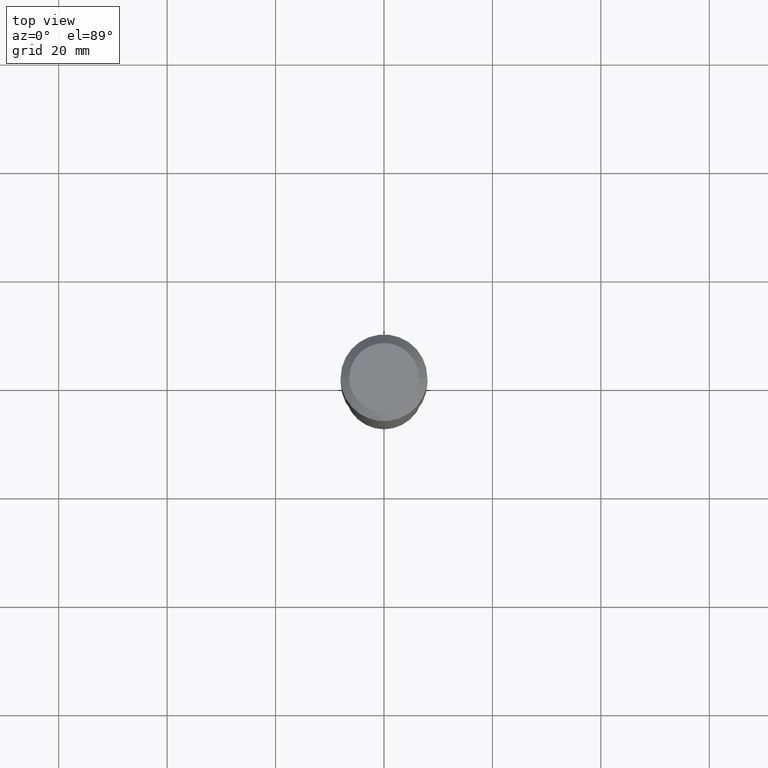
[diagram: clean part render]
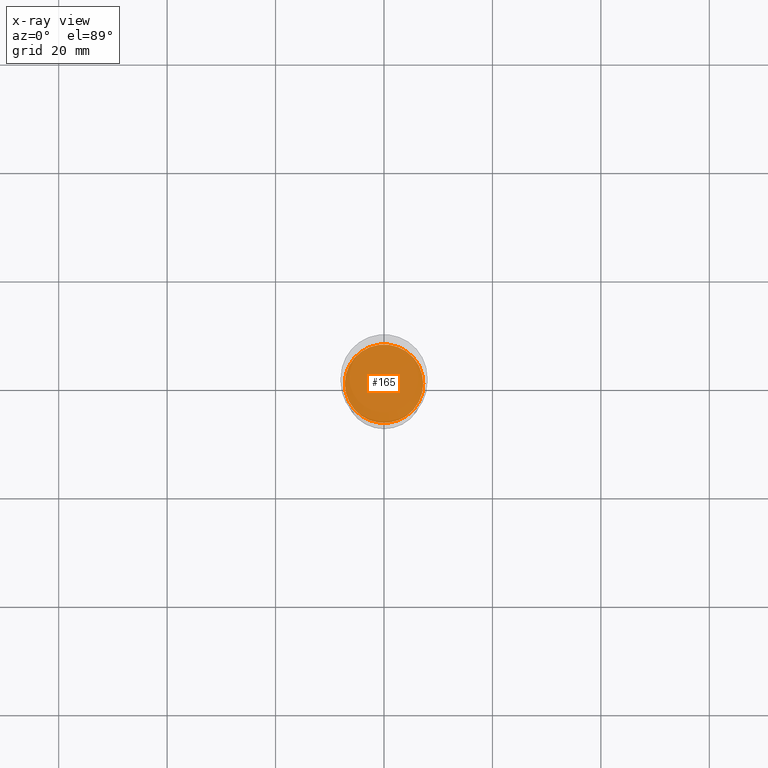
[diagram: x-ray — body ghosted, one internal face saturated and labeled with its STEP entity id]
A machine part, top view, then the same camera in x-ray: the body is ghosted and one INTERNAL B-rep face — a face not visible from any outside direction — is saturated and labeled: STEP entity #165.
In plain terms, the highlighted planar face has unit normal (-0, 0, 1).
Its self-contained STEP definition (entity closure, byte-faithful):
#15 = DIRECTION ( 'NONE',  ( -2.438088387897960049E-29, 3.491481338843145188E-15, 1.000000000000000000 ) ) ;
#22 = AXIS2_PLACEMENT_3D ( 'NONE', #54, #15, #426 ) ;
#54 = CARTESIAN_POINT ( 'NONE',  ( 6.210023486426536087E-29, -8.866267711858284157E-15, -2.539400000000000102 ) ) ;
#100 = EDGE_LOOP ( 'NONE', ( #475, #345 ) ) ;
#117 = DIRECTION ( 'NONE',  ( 1.000000000000000000, -6.982962677686263555E-15, 0.000000000000000000 ) ) ;
#118 = CIRCLE ( 'NONE', #225, 0.2849499999999999811 ) ;
#132 = PLANE ( 'NONE',  #22 ) ;
#136 = DIRECTION ( 'NONE',  ( -2.445468806185136597E-29, 3.491481338843145583E-15, 1.000000000000000000 ) ) ;
#137 = VERTEX_POINT ( 'NONE', #391 ) ;
#149 = CARTESIAN_POINT ( 'NONE',  ( 6.210023486426536087E-29, -8.866267711858284157E-15, -2.539400000000000102 ) ) ;
#165 = ADVANCED_FACE ( 'NONE', ( #213 ), #132, .F. ) ;
#175 = CIRCLE ( 'NONE', #265, 0.2849499999999999811 ) ;
#187 = VERTEX_POINT ( 'NONE', #356 ) ;
#213 = FACE_OUTER_BOUND ( 'NONE', #100, .T. ) ;
#225 = AXIS2_PLACEMENT_3D ( 'NONE', #149, #236, #117 ) ;
#236 = DIRECTION ( 'NONE',  ( -2.445468806185136597E-29, 3.491481338843145583E-15, 1.000000000000000000 ) ) ;
#255 = EDGE_CURVE ( 'NONE', #137, #187, #175, .T. ) ;
#265 = AXIS2_PLACEMENT_3D ( 'NONE', #439, #136, #371 ) ;
#345 = ORIENTED_EDGE ( 'NONE', *, *, #255, .F. ) ;
#356 = CARTESIAN_POINT ( 'NONE',  ( 0.2849499999999999811, -1.085606292686498571E-14, -2.539400000000000102 ) ) ;
#371 = DIRECTION ( 'NONE',  ( 1.000000000000000000, -6.982962677686263555E-15, 0.000000000000000000 ) ) ;
#391 = CARTESIAN_POINT ( 'NONE',  ( -0.2849499999999999811, -6.838926959135767216E-15, -2.539400000000000102 ) ) ;
#426 = DIRECTION ( 'NONE',  ( 1.000000000000000000, -6.982962677686265922E-15, 4.876176775795935793E-29 ) ) ;
#439 = CARTESIAN_POINT ( 'NONE',  ( 6.210023486426536087E-29, -8.866267711858284157E-15, -2.539400000000000102 ) ) ;
#475 = ORIENTED_EDGE ( 'NONE', *, *, #477, .F. ) ;
#477 = EDGE_CURVE ( 'NONE', #187, #137, #118, .T. ) ;